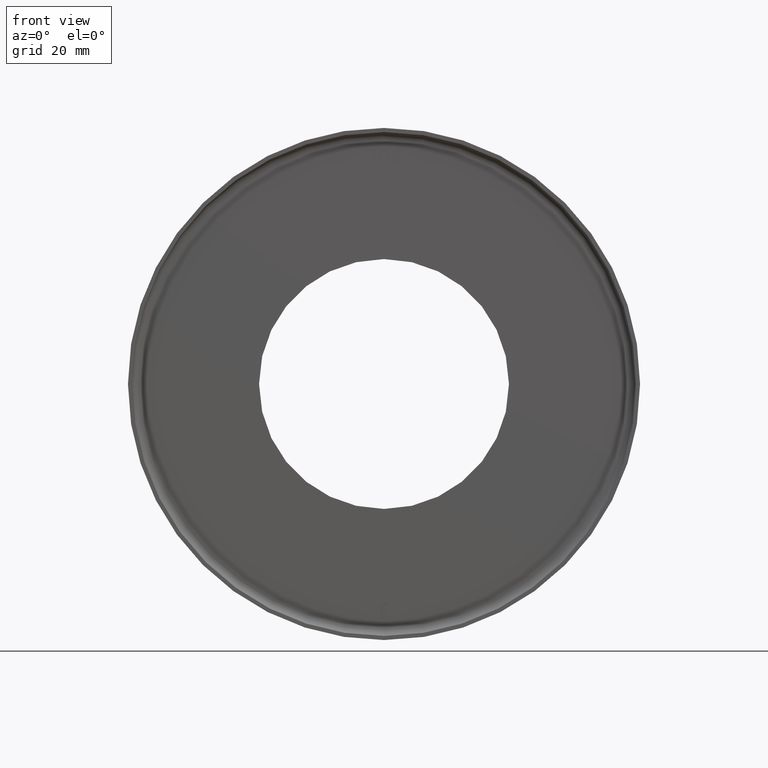
[diagram: clean part render]
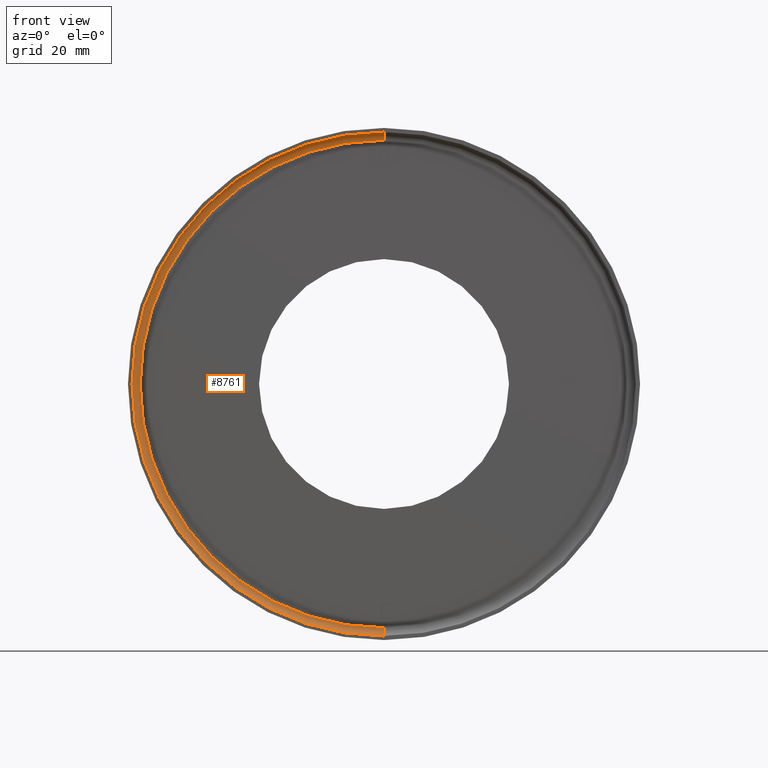
[diagram: same view with one face highlighted and labeled with its STEP entity id]
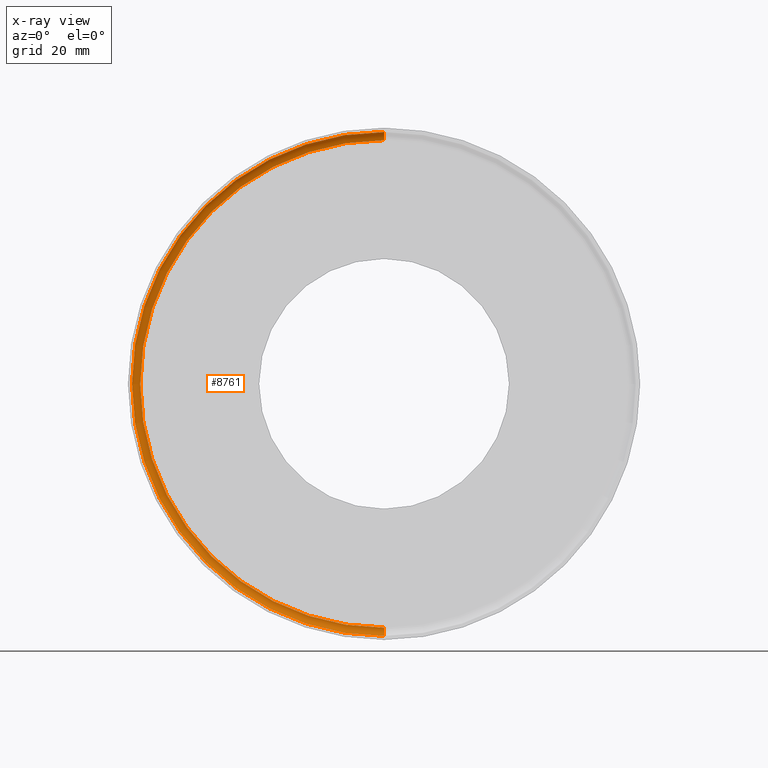
[diagram: x-ray of the same camera — body ghosted, the highlighted face saturated]
A machine part, front view. The second image highlights one B-rep face of the part: STEP entity #8761.
The next image is the same camera in x-ray: the body ghosted, the highlighted face saturated — about 0% of this face is hidden behind the body in this view.
In plain terms, the highlighted toroidal blend (fillet) surface has major radius 59.5 mm and minor (blend) radius 2 mm.
Its self-contained STEP definition (entity closure, byte-faithful):
#1140 = AXIS2_PLACEMENT_3D ( 'NONE', #14955, #13605, #16250 ) ;
#1212 = TOROIDAL_SURFACE ( 'NONE', #12484, 59.50000000000000000, 2.000000000000000000 ) ;
#1237 = ORIENTED_EDGE ( 'NONE', *, *, #11383, .F. ) ;
#1309 = CARTESIAN_POINT ( 'NONE',  ( 7.531577814756222656E-15, 22.00000000000000355, 61.50000000000000000 ) ) ;
#1388 = DIRECTION ( 'NONE',  ( -1.000000000000000000, 0.000000000000000000, 0.000000000000000000 ) ) ;
#1861 = AXIS2_PLACEMENT_3D ( 'NONE', #13570, #8441, #12126 ) ;
#2073 = DIRECTION ( 'NONE',  ( 0.000000000000000000, 0.000000000000000000, -1.000000000000000000 ) ) ;
#2152 = CARTESIAN_POINT ( 'NONE',  ( 0.000000000000000000, 22.00000000000000355, -61.50000000000000000 ) ) ;
#2405 = DIRECTION ( 'NONE',  ( -0.000000000000000000, -1.000000000000000000, -0.000000000000000000 ) ) ;
#2707 = CARTESIAN_POINT ( 'NONE',  ( 0.000000000000000000, 24.00000000000000000, 0.000000000000000000 ) ) ;
#3386 = FACE_OUTER_BOUND ( 'NONE', #11220, .T. ) ;
#3527 = VERTEX_POINT ( 'NONE', #3619 ) ;
#3619 = CARTESIAN_POINT ( 'NONE',  ( 7.409113134841485930E-15, 24.00000000000000000, 59.50000000000000000 ) ) ;
#4011 = DIRECTION ( 'NONE',  ( -0.000000000000000000, -1.000000000000000000, -0.000000000000000000 ) ) ;
#4356 = CIRCLE ( 'NONE', #16133, 2.000000000000001776 ) ;
#4479 = CARTESIAN_POINT ( 'NONE',  ( 0.000000000000000000, 24.00000000000000000, -59.50000000000000000 ) ) ;
#5237 = DIRECTION ( 'NONE',  ( 0.000000000000000000, 0.000000000000000000, 1.000000000000000000 ) ) ;
#6774 = ORIENTED_EDGE ( 'NONE', *, *, #9771, .T. ) ;
#7241 = ORIENTED_EDGE ( 'NONE', *, *, #11927, .T. ) ;
#7300 = VERTEX_POINT ( 'NONE', #1309 ) ;
#7418 = VERTEX_POINT ( 'NONE', #4479 ) ;
#8441 = DIRECTION ( 'NONE',  ( -0.000000000000000000, -1.000000000000000000, -0.000000000000000000 ) ) ;
#8761 = ADVANCED_FACE ( 'NONE', ( #3386 ), #1212, .F. ) ;
#9771 = EDGE_CURVE ( 'NONE', #7300, #15231, #10401, .T. ) ;
#10000 = DIRECTION ( 'NONE',  ( 0.000000000000000000, 0.000000000000000000, -1.000000000000000000 ) ) ;
#10401 = CIRCLE ( 'NONE', #1861, 61.50000000000000000 ) ;
#11220 = EDGE_LOOP ( 'NONE', ( #15186, #7241, #6774, #1237 ) ) ;
#11271 = CIRCLE ( 'NONE', #11538, 59.50000000000000000 ) ;
#11383 = EDGE_CURVE ( 'NONE', #7418, #15231, #4356, .T. ) ;
#11538 = AXIS2_PLACEMENT_3D ( 'NONE', #2707, #4011, #2073 ) ;
#11927 = EDGE_CURVE ( 'NONE', #3527, #7300, #12167, .T. ) ;
#12126 = DIRECTION ( 'NONE',  ( 0.000000000000000000, 0.000000000000000000, -1.000000000000000000 ) ) ;
#12167 = CIRCLE ( 'NONE', #1140, 2.000000000000001776 ) ;
#12484 = AXIS2_PLACEMENT_3D ( 'NONE', #16376, #2405, #10000 ) ;
#13570 = CARTESIAN_POINT ( 'NONE',  ( 0.000000000000000000, 22.00000000000000355, 0.000000000000000000 ) ) ;
#13605 = DIRECTION ( 'NONE',  ( 1.000000000000000000, 0.000000000000000000, -1.224646799147353207E-16 ) ) ;
#14339 = CARTESIAN_POINT ( 'NONE',  ( 0.000000000000000000, 22.00000000000000355, -59.50000000000000000 ) ) ;
#14955 = CARTESIAN_POINT ( 'NONE',  ( 7.286648454926750781E-15, 22.00000000000000355, 59.50000000000000000 ) ) ;
#15186 = ORIENTED_EDGE ( 'NONE', *, *, #16262, .F. ) ;
#15231 = VERTEX_POINT ( 'NONE', #2152 ) ;
#16133 = AXIS2_PLACEMENT_3D ( 'NONE', #14339, #1388, #5237 ) ;
#16250 = DIRECTION ( 'NONE',  ( -1.224646799147349509E-16, 0.000000000000000000, -1.000000000000000000 ) ) ;
#16262 = EDGE_CURVE ( 'NONE', #3527, #7418, #11271, .T. ) ;
#16376 = CARTESIAN_POINT ( 'NONE',  ( 0.000000000000000000, 22.00000000000000355, 0.000000000000000000 ) ) ;